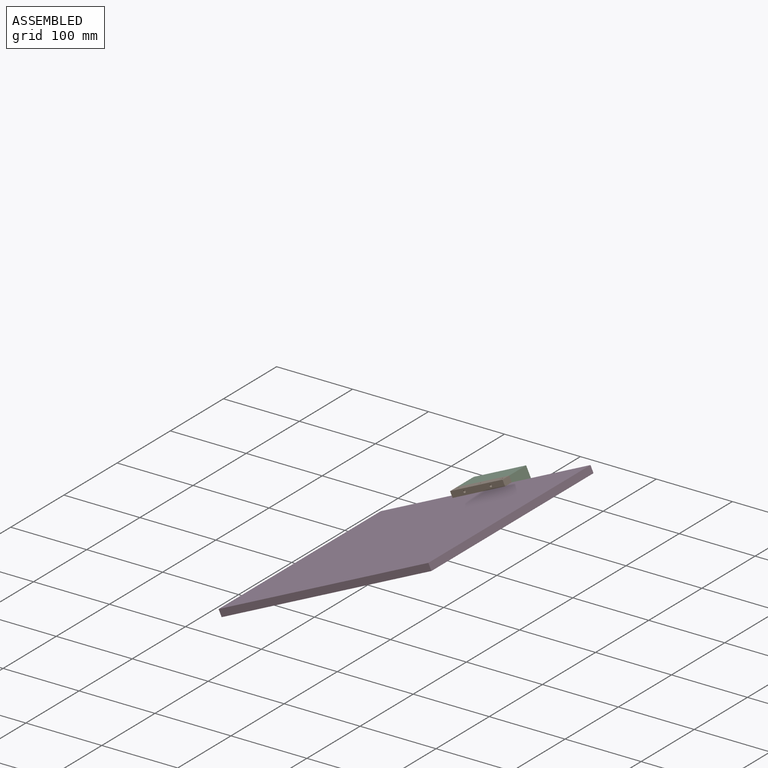
[diagram: assembled view]
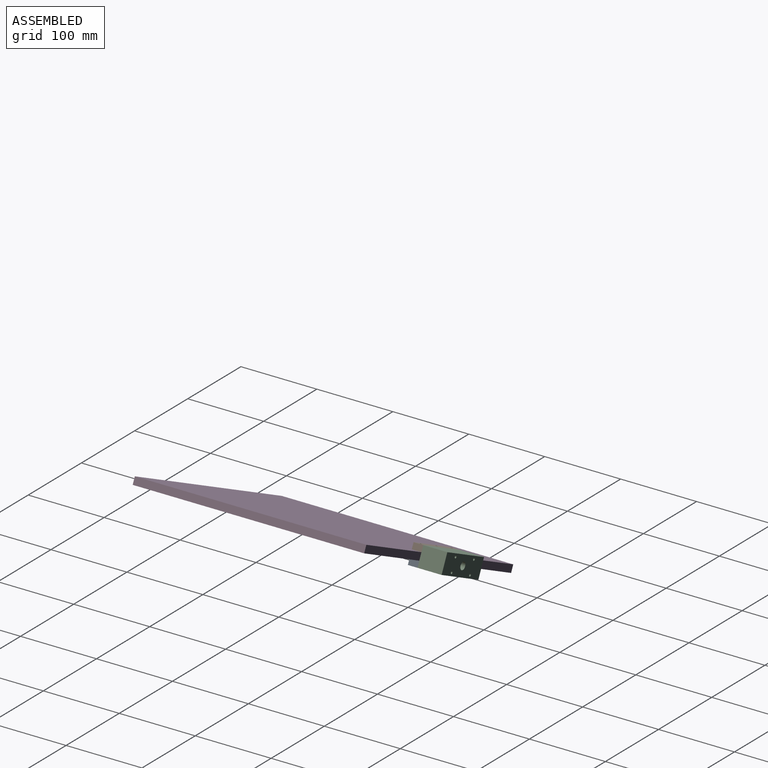
[diagram: assembled view, second angle]
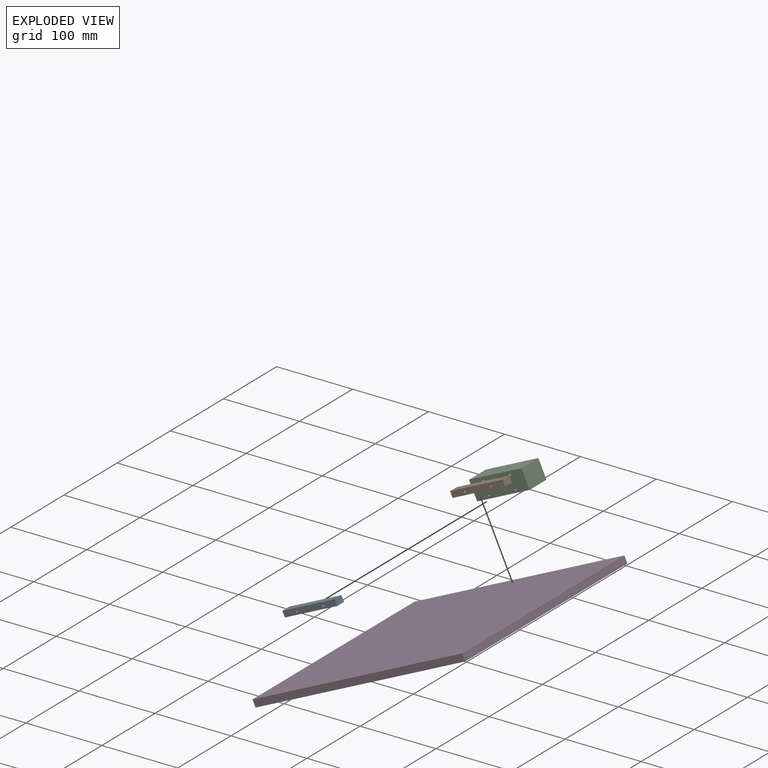
[diagram: exploded view]
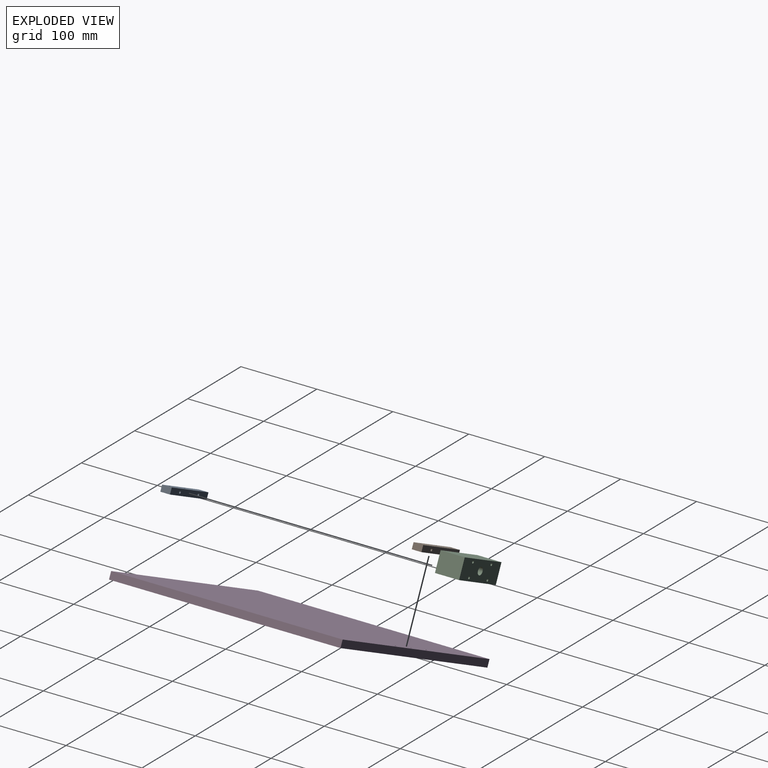
[diagram: exploded view, second angle]
ASSEMBLY  parts=4 mates=3
PART A: 11 faces, bbox 76.2x12.7x7.9 mm
  f0: plane 76.2x12.7mm, normal (0,0,1), area 944mm2, adj f1,f3,f4,f5,f6,f7,f8
  f1: plane 12.7x7.94mm, normal (-1,0,0), area 100.8mm2, adj f0,f2,f4,f5
  f2: plane 76.2x12.7mm, normal (0,0,-1), area 944mm2, adj f1,f3,f4,f5,f6,f7,f8
  f3: plane 12.7x7.94mm, normal (1,0,0), area 100.8mm2, adj f0,f2,f4,f5
  f4: plane 76.2x7.94mm, normal (0,-1,0), area 589mm2, adj f0,f1,f2,f3,f9,f10
  f5: plane 76.2x7.94mm, normal (0,1,0), area 589mm2, adj f0,f1,f2,f3,f9,f10
  f6: cylinder r=1.59mm len=7.94mm, axis (0,0,1), area 79.2mm2, adj f0,f2
  f7: cylinder r=1.59mm len=7.94mm, axis (0,0,1), area 79.2mm2, adj f0,f2
  f8: cylinder r=1.59mm len=7.94mm, axis (0,0,1), area 79.2mm2, adj f0,f2
  f9: cylinder r=1.59mm len=12.7mm, axis (0,-1,0), area 126.7mm2, adj f4,f5
  f10: cylinder r=1.59mm len=12.7mm, axis (0,-1,0), area 126.7mm2, adj f4,f5
PART B: 11 faces, bbox 76.2x12.7x7.9 mm
  f0: plane 12.7x7.94mm, normal (-1,0,0), area 100.8mm2, adj f1,f3,f4,f5
  f1: plane 76.2x12.7mm, normal (0,0,-1), area 944mm2, adj f0,f2,f4,f5,f6,f7,f8
  f2: plane 12.7x7.94mm, normal (1,0,0), area 100.8mm2, adj f1,f3,f4,f5
  f3: plane 76.2x12.7mm, normal (0,0,1), area 944mm2, adj f0,f2,f4,f5,f6,f7,f8
  f4: plane 76.2x7.94mm, normal (0,-1,0), area 589mm2, adj f0,f1,f2,f3,f9,f10
  f5: plane 76.2x7.94mm, normal (0,1,0), area 589mm2, adj f0,f1,f2,f3,f9,f10
  f6: cylinder r=1.59mm len=7.94mm, axis (0,0,1), area 79.2mm2, adj f1,f3
  f7: cylinder r=1.59mm len=7.94mm, axis (0,0,1), area 79.2mm2, adj f1,f3
  f8: cylinder r=1.59mm len=7.94mm, axis (0,0,1), area 79.2mm2, adj f1,f3
  f9: cylinder r=1.59mm len=12.7mm, axis (0,-1,0), area 126.7mm2, adj f4,f5
  f10: cylinder r=1.59mm len=12.7mm, axis (0,-1,0), area 126.7mm2, adj f4,f5
PART C: 12 faces, bbox 76.2x31.8x25.4 mm
  f0: plane 76.2x31.75mm, normal (0,0,1), area 2419.3mm2, adj f1,f4,f5,f7
  f1: plane 31.75x25.4mm, normal (-1,0,0), area 806.5mm2, adj f0,f2,f5,f7
  f2: plane 76.2x31.75mm, normal (0,0,-1), area 2419.3mm2, adj f1,f4,f5,f7
  f3: cylinder r=4.76mm len=25.4mm, axis (0,1,0), area 760.1mm2, adj f5,f6
  f4: plane 31.75x25.4mm, normal (1,0,0), area 806.5mm2, adj f0,f2,f5,f7
  f5: plane 76.2x25.4mm, normal (0,1,0), area 1832.6mm2, adj f0,f1,f2,f3,f4,f8,f9,f10
  f6: plane 9.53x9.53mm, normal (0,1,0), area 71.3mm2, adj f3
  f7: plane 76.2x25.4mm, normal (0,-1,0), area 1903.8mm2, adj f0,f1,f2,f4,f8,f9,f10,f11
  f8: cylinder r=1.59mm len=31.75mm, axis (0,-1,0), area 316.7mm2, adj f5,f7
  f9: cylinder r=1.59mm len=31.75mm, axis (0,-1,0), area 316.7mm2, adj f5,f7
  f10: cylinder r=1.59mm len=31.75mm, axis (0,-1,0), area 316.7mm2, adj f5,f7
  f11: cylinder r=1.59mm len=31.75mm, axis (0,-1,0), area 316.7mm2, adj f5,f7
PART D: 9 faces, bbox 304.8x304.8x9.5 mm
  f0: plane 304.8x304.8mm, normal (0,0,-1), area 92879.3mm2, adj f1,f3,f4,f5,f6,f7,f8
  f1: plane 304.8x9.53mm, normal (1,0,0), area 2903.2mm2, adj f0,f2,f4,f5
  f2: plane 304.8x304.8mm, normal (0,0,1), area 92879.3mm2, adj f1,f3,f4,f5,f6,f7,f8
  f3: plane 304.8x9.53mm, normal (-1,0,0), area 2903.2mm2, adj f0,f2,f4,f5
  f4: plane 304.8x9.53mm, normal (0,-1,0), area 2903.2mm2, adj f0,f1,f2,f3
  f5: plane 304.8x9.53mm, normal (0,1,0), area 2903.2mm2, adj f0,f1,f2,f3
  f6: cylinder r=1.59mm len=9.53mm, axis (0,0,1), area 95mm2, adj f0,f2
  f7: cylinder r=1.59mm len=9.53mm, axis (0,0,1), area 95mm2, adj f0,f2
  f8: cylinder r=1.59mm len=9.53mm, axis (0,0,1), area 95mm2, adj f0,f2
PLACE A rot(axis=(0,-1,0),25deg) t=(180.41,-1.32,-103.27)mm
PLACE B rot(axis=(0,-1,0),25deg) t=(180.41,-1.32,-103.27)mm
PLACE C rot(axis=(0,-1,0),25deg) t=(180.41,-1.32,-103.27)mm
PLACE D rot(axis=(0,-1,0),25deg) t=(180.41,-1.32,-103.27)mm
MATE fastened A.f10 <-> C.f11  axis (0,1,0) through (166.83,-33.07,-119.23)mm
MATE fastened B.f10 <-> C.f9  axis (0,1,0) through (159.45,-33.07,-103.41)mm
MATE fastened D.f7 <-> B.f7  axis (-0.42,0,0.91) through (178.39,-39.42,-98.95)mm
